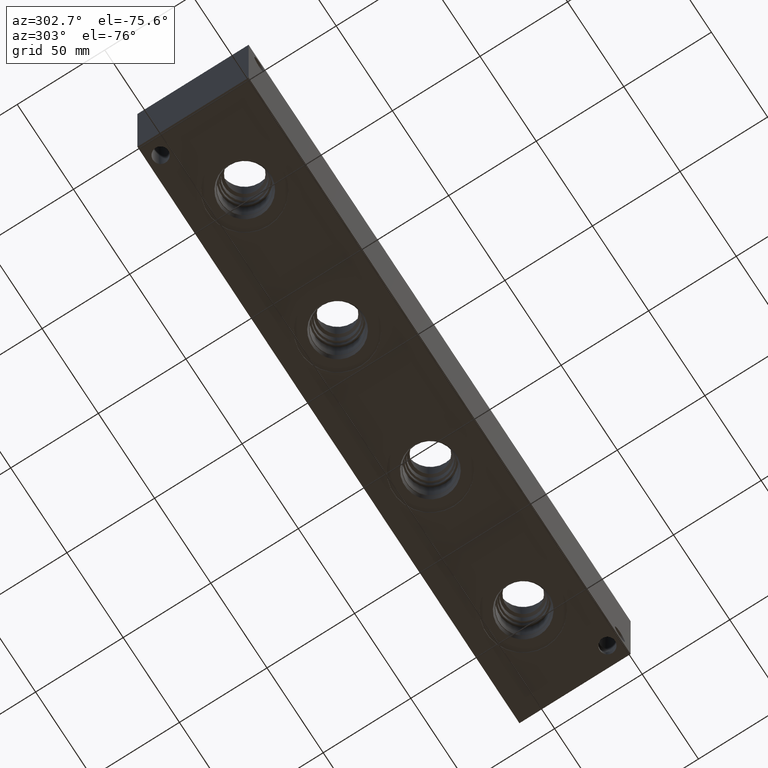
[diagram: clean part render]
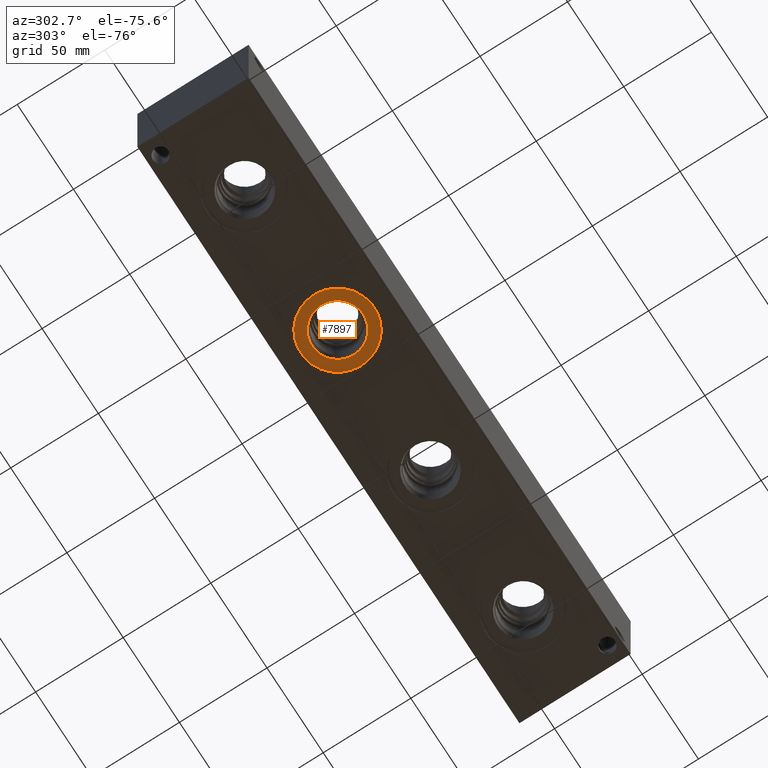
[diagram: same view with one face highlighted and labeled with its STEP entity id]
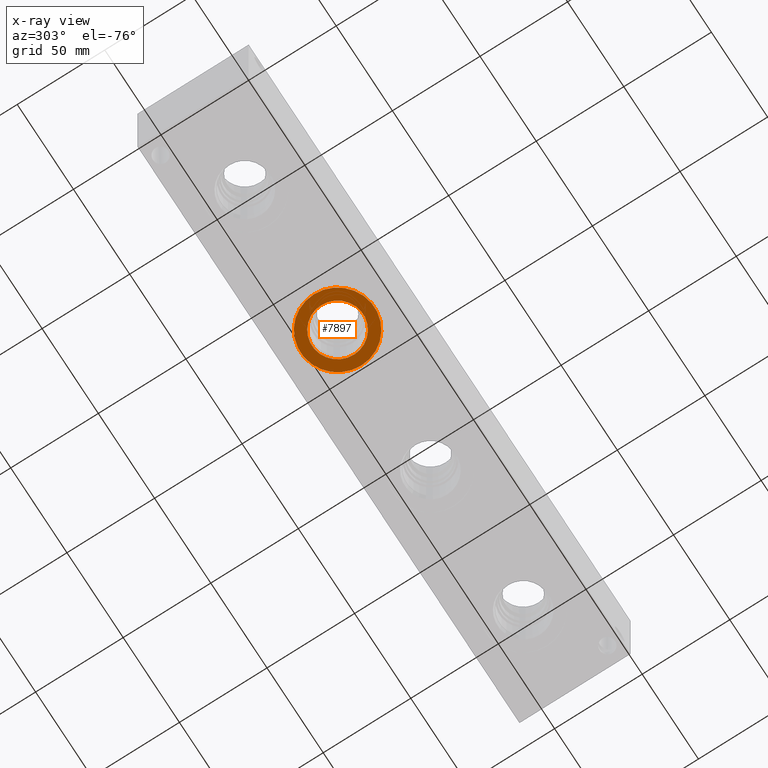
[diagram: x-ray of the same camera — body ghosted, the highlighted face saturated]
A machine part, auxiliary view. The second image highlights one B-rep face of the part: STEP entity #7897.
The next image is the same camera in x-ray: the body ghosted, the highlighted face saturated — about 0% of this face is hidden behind the body in this view.
In plain terms, the highlighted planar face has unit normal (0, 0, 1).
Its self-contained STEP definition (entity closure, byte-faithful):
#146=CIRCLE('',#8286,21.0185);
#147=CIRCLE('',#8287,21.0185);
#148=CIRCLE('',#8289,14.5923);
#149=CIRCLE('',#8290,14.5923);
#305=FACE_BOUND('',#1353,.T.);
#909=FACE_OUTER_BOUND('',#1352,.T.);
#1352=EDGE_LOOP('',(#6611,#6612));
#1353=EDGE_LOOP('',(#6613,#6614));
#3587=VERTEX_POINT('',#13202);
#3588=VERTEX_POINT('',#13204);
#3589=VERTEX_POINT('',#13208);
#3590=VERTEX_POINT('',#13209);
#4625=EDGE_CURVE('',#3587,#3588,#146,.T.);
#4626=EDGE_CURVE('',#3588,#3587,#147,.T.);
#4627=EDGE_CURVE('',#3589,#3590,#148,.T.);
#4628=EDGE_CURVE('',#3590,#3589,#149,.T.);
#6611=ORIENTED_EDGE('',*,*,#4626,.F.);
#6612=ORIENTED_EDGE('',*,*,#4625,.F.);
#6613=ORIENTED_EDGE('',*,*,#4627,.T.);
#6614=ORIENTED_EDGE('',*,*,#4628,.T.);
#7253=PLANE('',#8288);
#7897=ADVANCED_FACE('',(#909,#305),#7253,.F.);
#8286=AXIS2_PLACEMENT_3D('',#13205,#9767,#9768);
#8287=AXIS2_PLACEMENT_3D('',#13206,#9769,#9770);
#8288=AXIS2_PLACEMENT_3D('',#13207,#9771,#9772);
#8289=AXIS2_PLACEMENT_3D('',#13210,#9773,#9774);
#8290=AXIS2_PLACEMENT_3D('',#13211,#9775,#9776);
#9767=DIRECTION('center_axis',(0.,0.,1.));
#9768=DIRECTION('ref_axis',(1.,0.,0.));
#9769=DIRECTION('center_axis',(0.,0.,1.));
#9770=DIRECTION('ref_axis',(1.,0.,0.));
#9771=DIRECTION('center_axis',(0.,0.,1.));
#9772=DIRECTION('ref_axis',(1.,0.,0.));
#9773=DIRECTION('center_axis',(0.,0.,1.));
#9774=DIRECTION('ref_axis',(1.,0.,0.));
#9775=DIRECTION('center_axis',(0.,0.,1.));
#9776=DIRECTION('ref_axis',(1.,0.,0.));
#13202=CARTESIAN_POINT('',(107.5563,31.75,0.7874));
#13204=CARTESIAN_POINT('',(149.5933,31.75,0.7874));
#13205=CARTESIAN_POINT('Origin',(128.5748,31.75,0.7874));
#13206=CARTESIAN_POINT('Origin',(128.5748,31.75,0.7874));
#13207=CARTESIAN_POINT('Origin',(143.1671,31.75,0.7874));
#13208=CARTESIAN_POINT('',(143.1671,31.75,0.7874));
#13209=CARTESIAN_POINT('',(113.9825,31.75,0.7874));
#13210=CARTESIAN_POINT('Origin',(128.5748,31.75,0.7874));
#13211=CARTESIAN_POINT('Origin',(128.5748,31.75,0.7874));